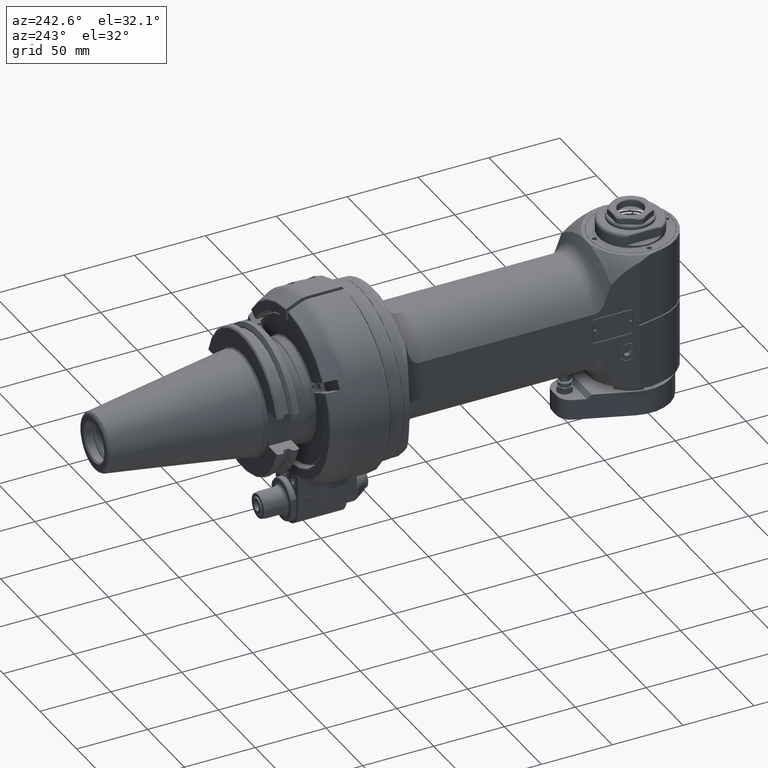
[diagram: clean part render]
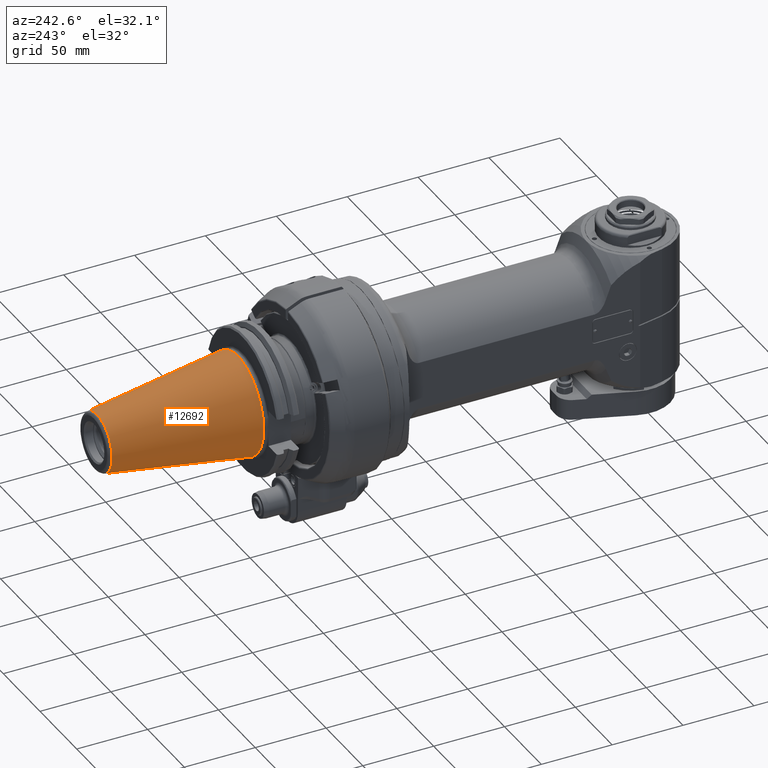
[diagram: same view with one face highlighted and labeled with its STEP entity id]
A machine part, auxiliary view. The second image highlights one B-rep face of the part: STEP entity #12692.
In plain terms, the highlighted conical surface has half-angle 8.297 deg.
Its self-contained STEP definition (entity closure, byte-faithful):
#65=CONICAL_SURFACE('',#13631,27.67265681028,0.144812411498922);
#902=CIRCLE('',#13629,34.925);
#903=CIRCLE('',#13630,34.925);
#904=CIRCLE('',#13632,20.42031362057);
#905=CIRCLE('',#13633,20.42031362057);
#1609=FACE_OUTER_BOUND('',#2409,.T.);
#2409=EDGE_LOOP('',(#8864,#8865,#8866,#8867,#8868,#8869));
#3548=LINE('',#19761,#4380);
#4380=VECTOR('',#15442,27.67265681028);
#5278=VERTEX_POINT('',#19754);
#5279=VERTEX_POINT('',#19755);
#5280=VERTEX_POINT('',#19760);
#5281=VERTEX_POINT('',#19762);
#6651=EDGE_CURVE('',#5278,#5279,#902,.T.);
#6653=EDGE_CURVE('',#5279,#5278,#903,.T.);
#6654=EDGE_CURVE('',#5278,#5280,#3548,.T.);
#6655=EDGE_CURVE('',#5281,#5280,#904,.T.);
#6656=EDGE_CURVE('',#5280,#5281,#905,.T.);
#8864=ORIENTED_EDGE('',*,*,#6651,.F.);
#8865=ORIENTED_EDGE('',*,*,#6654,.T.);
#8866=ORIENTED_EDGE('',*,*,#6655,.F.);
#8867=ORIENTED_EDGE('',*,*,#6656,.F.);
#8868=ORIENTED_EDGE('',*,*,#6654,.F.);
#8869=ORIENTED_EDGE('',*,*,#6653,.F.);
#12692=ADVANCED_FACE('',(#1609),#65,.T.);
#13629=AXIS2_PLACEMENT_3D('',#19756,#15435,#15436);
#13630=AXIS2_PLACEMENT_3D('',#19758,#15438,#15439);
#13631=AXIS2_PLACEMENT_3D('',#19759,#15440,#15441);
#13632=AXIS2_PLACEMENT_3D('',#19763,#15443,#15444);
#13633=AXIS2_PLACEMENT_3D('',#19764,#15445,#15446);
#15435=DIRECTION('center_axis',(0.,-1.,0.));
#15436=DIRECTION('ref_axis',(-1.,0.,0.));
#15438=DIRECTION('center_axis',(0.,-1.,0.));
#15439=DIRECTION('ref_axis',(-1.,0.,0.));
#15440=DIRECTION('center_axis',(0.,-1.,0.));
#15441=DIRECTION('ref_axis',(-1.,0.,0.));
#15442=DIRECTION('',(-0.144306807239621,0.98953299358046,-1.76724869581176E-17));
#15443=DIRECTION('center_axis',(0.,1.,0.));
#15444=DIRECTION('ref_axis',(-1.,0.,0.));
#15445=DIRECTION('center_axis',(0.,1.,0.));
#15446=DIRECTION('ref_axis',(-1.,0.,0.));
#19754=CARTESIAN_POINT('',(34.925,76.9999997692299,0.));
#19755=CARTESIAN_POINT('',(-34.9250000000012,76.9999997692296,4.27707894602227E-15));
#19756=CARTESIAN_POINT('Origin',(0.,76.9999997692299,0.));
#19758=CARTESIAN_POINT('Origin',(0.,76.9999997692299,0.));
#19759=CARTESIAN_POINT('Origin',(0.,126.73038327828,0.));
#19760=CARTESIAN_POINT('',(20.4203136205638,176.460766787329,2.50076717130085E-15));
#19761=CARTESIAN_POINT('',(27.67265681028,126.73038327828,3.38892305866126E-15));
#19762=CARTESIAN_POINT('',(2.50076717130162E-15,176.46076678733,-20.42031362057));
#19763=CARTESIAN_POINT('Origin',(0.,176.46076678733,0.));
#19764=CARTESIAN_POINT('Origin',(0.,176.46076678733,0.));